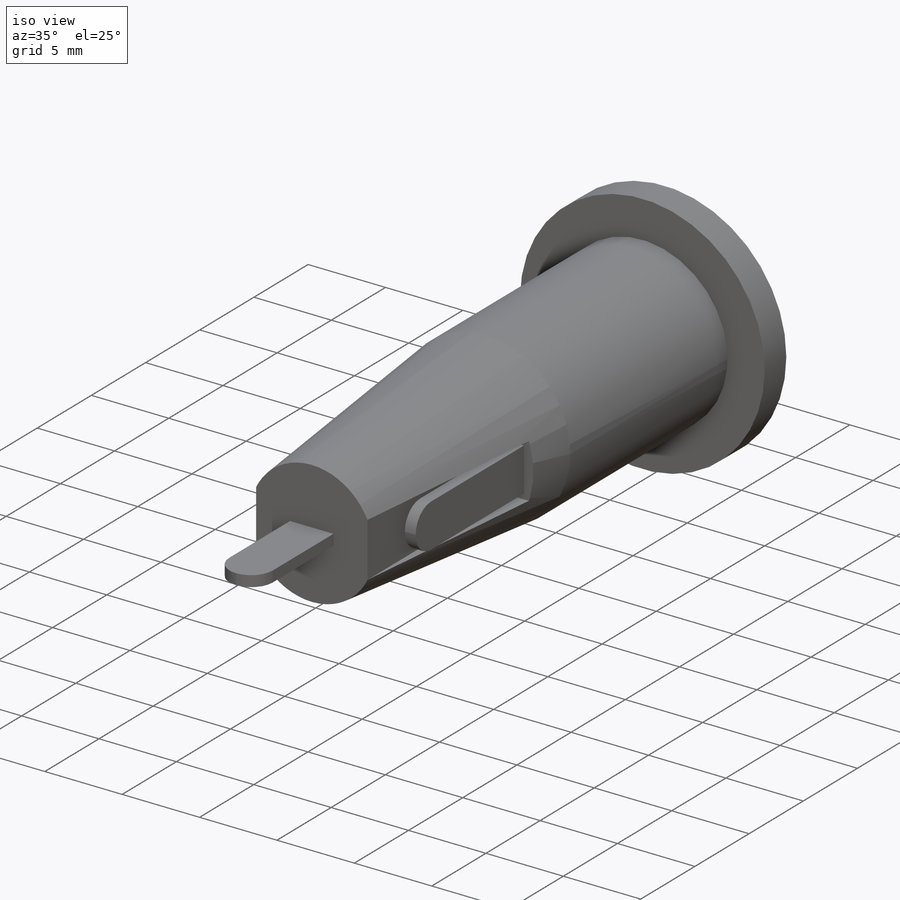
[diagram: iso view]
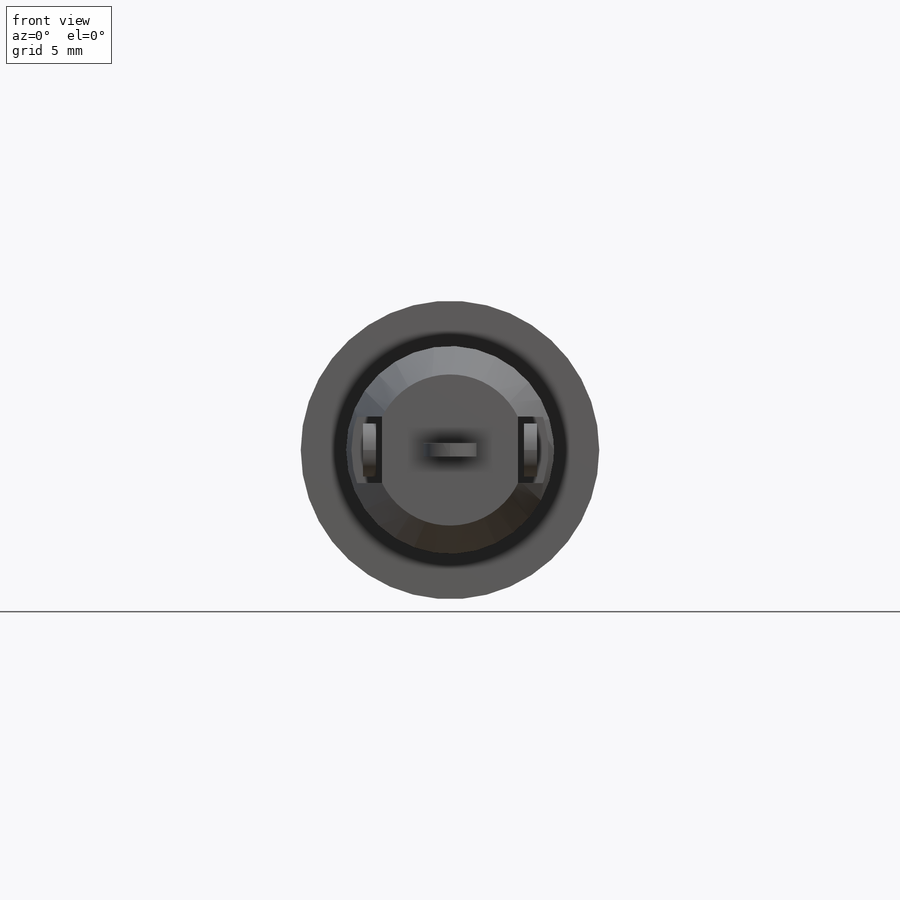
[diagram: front view]
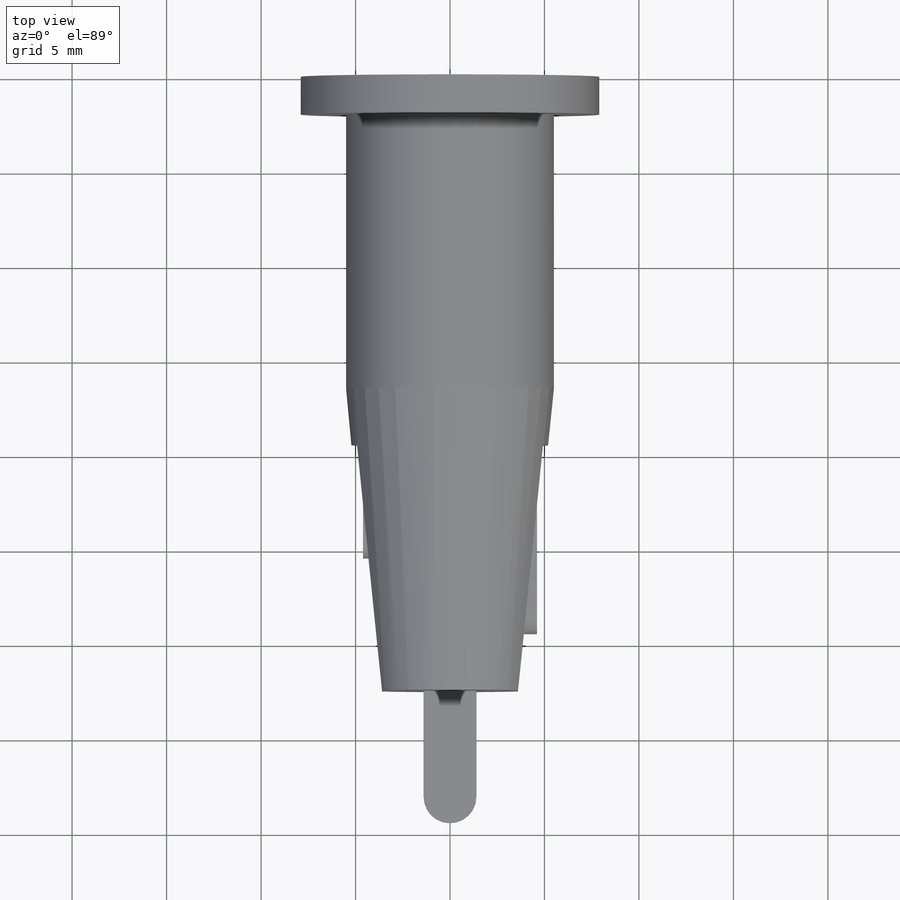
[diagram: top view]
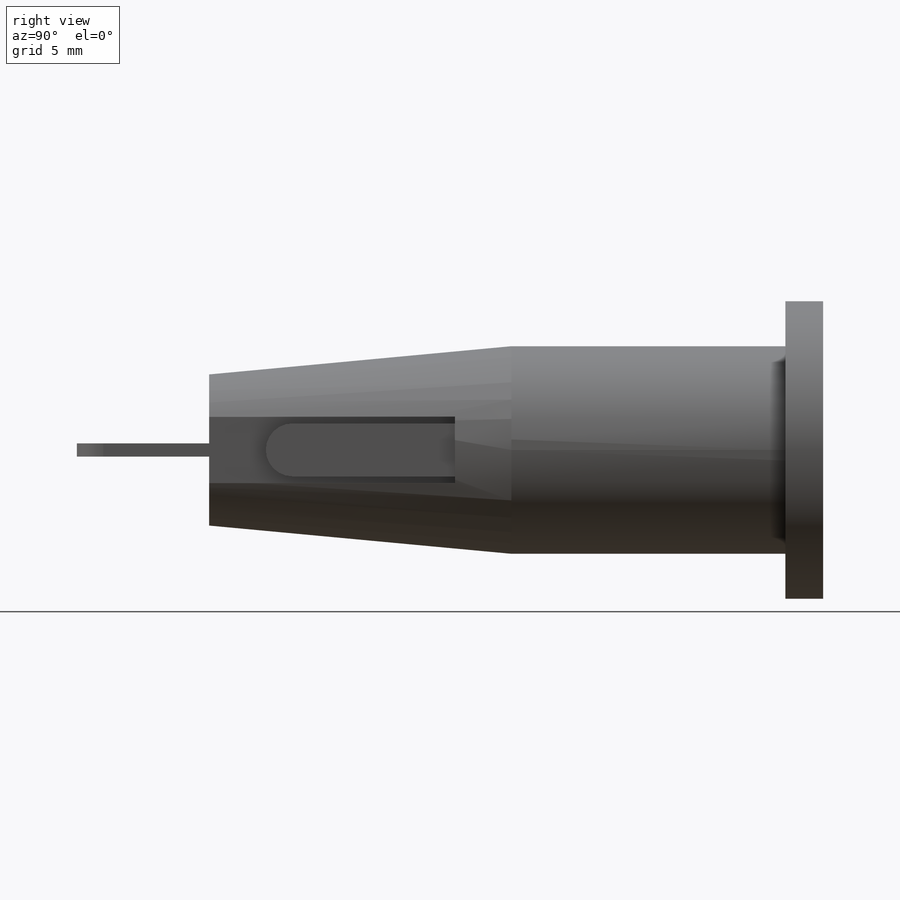
[diagram: right view]
SOLIDWORKS PART (.sldprt)
format: sldprt  version: not decoded by parser v0  size: 226,816 bytes
history: native  units: mm
features: sketch x8, extrude x5, plane x4, cut_extrude x2, material x1, fillet x1 (+13 scaffold rows collapsed)
feature tree (34):
  scaffold x13  (default folders/planes/origin — collapsed)
  material  "Material <sin especificar>"
  plane  "Alzado"
  plane  "Planta"
  plane  "Vista lateral"
  sketch  "Croquis1"  dims[D1=15.8mm]
  extrude  "Saliente-Extruir1"  Depth=2mm
  sketch  "Croquis2"  dims[D1=11.0mm]
  extrude  "Saliente-Extruir2"  Depth=14.5mm
  plane  "Plano1"  Offset=16mm
  sketch  "Croquis3"  dims[D1=8.0mm]
  sketch  "Croquis4"  dims[D1=3.5mm D2=3.0mm]
  cut_extrude  "Cortar-Extruir1"  Depth=13mm
  sketch  "Croquis5"  dims[D1=2.8mm D2=0.7mm]
  extrude  "Saliente-Extruir3"  Depth=6mm
  sketch  "Croquis6"  dims[D1=0.7mm D2=2.8mm]
  extrude  "Saliente-Extruir4"  Depth=10mm
  sketch  "Croquis7"  dims[D1=2.8mm D2=0.7mm]
  extrude  "Saliente-Extruir5"  Depth=7mm
  fillet  "Redondeo1"  Radius=1.4mm
  sketch  "Croquis8"  dims[D1=8.5mm D2=1.8mm]
  cut_extrude  "Cortar-Extruir2"  Depth=1mm
decode coverage: 16 of 16 modeling features carry decoded parameters
note: suppression state not decoded; provenance and decode notes live in map.json
